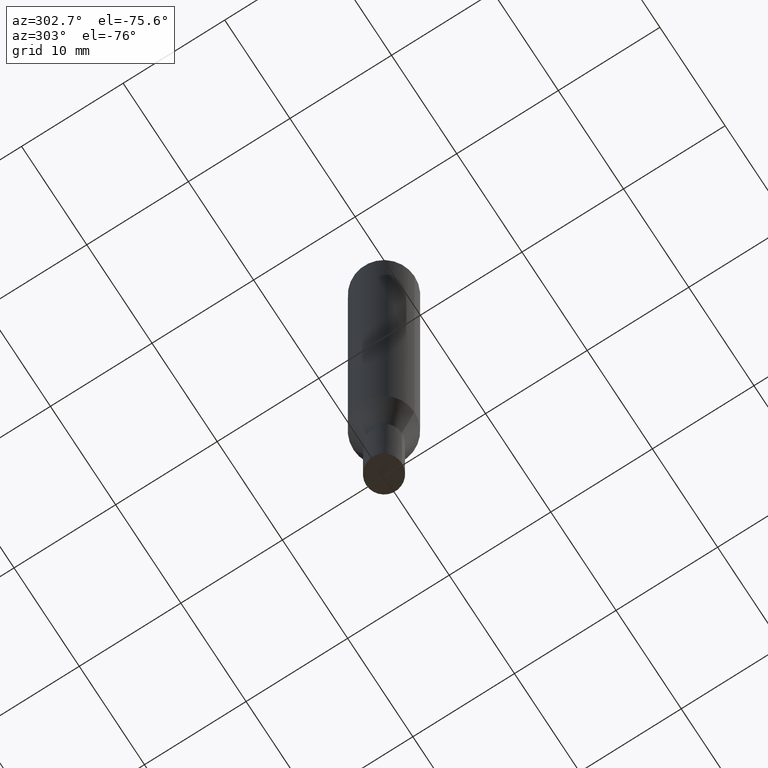
[diagram: clean part render]
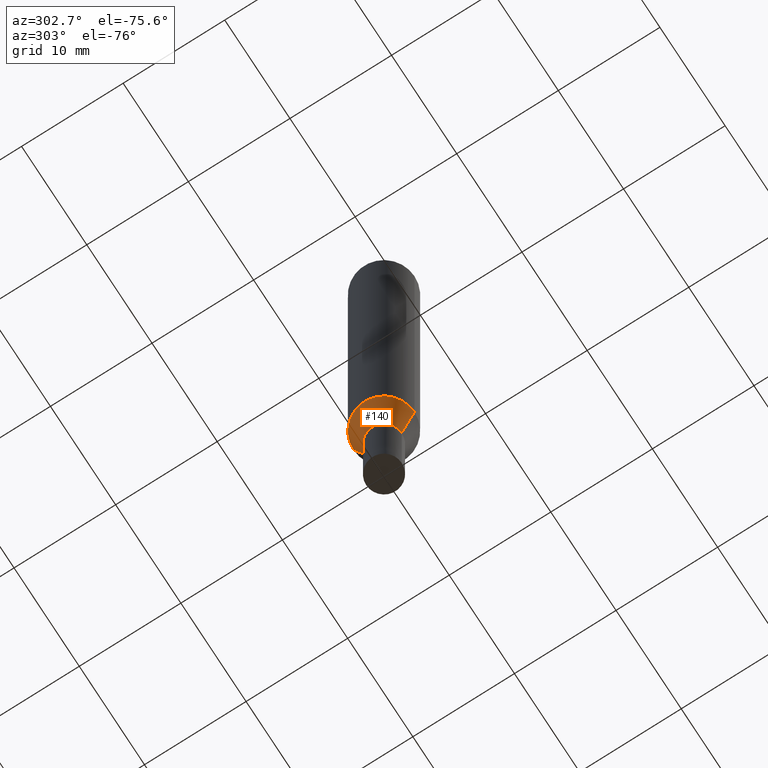
[diagram: same view with one face highlighted and labeled with its STEP entity id]
A machine part, auxiliary view. The second image highlights one B-rep face of the part: STEP entity #140.
In plain terms, the highlighted conical surface has half-angle 16.001 deg.
Its self-contained STEP definition (entity closure, byte-faithful):
#100=EDGE_CURVE('',#120,#124,#222,.T.);
#106=EDGE_CURVE('',#120,#118,#230,.T.);
#118=VERTEX_POINT('',#244);
#120=VERTEX_POINT('',#246);
#124=VERTEX_POINT('',#250);
#126=VERTEX_POINT('',#252);
#140=ADVANCED_FACE('',(#268),#269,.T.);
#142=EDGE_CURVE('',#126,#124,#271,.T.);
#176=EDGE_CURVE('',#118,#126,#308,.T.);
#222=CIRCLE('',#354,1.74995);
#230=LINE('',#363,#364);
#244=CARTESIAN_POINT('',(3.67375783114944E-016,-2.99995,-45.641));
#246=CARTESIAN_POINT('',(2.14299988887147E-016,-1.74995,-50.0));
#250=CARTESIAN_POINT('',(0.0,1.74995,-50.0));
#252=CARTESIAN_POINT('',(0.0,2.99995,-45.641));
#268=FACE_OUTER_BOUND('',#411,.T.);
#269=CONICAL_SURFACE('',#412,2.37495,0.279268973819818);
#271=LINE('',#415,#416);
#308=CIRCLE('',#461,2.99995);
#354=AXIS2_PLACEMENT_3D('',#494,#495,#496);
#363=CARTESIAN_POINT('',(2.90837886001046E-016,-2.37495,-47.8205));
#364=VECTOR('',#511,1.0);
#411=EDGE_LOOP('',(#555,#556,#557,#558));
#412=AXIS2_PLACEMENT_3D('',#559,#560,#561);
#415=CARTESIAN_POINT('',(-2.90837886001046E-016,2.37495,-47.8205));
#416=VECTOR('',#562,1.0);
#461=AXIS2_PLACEMENT_3D('',#606,#607,#608);
#494=CARTESIAN_POINT('',(0.0,0.0,-50.0));
#495=DIRECTION('',(0.0,0.0,-1.0));
#496=DIRECTION('',(0.0,1.0,0.0));
#511=DIRECTION('',(3.375664374138E-017,-0.275653018098551,0.961257204713265));
#555=ORIENTED_EDGE('',*,*,#142,.T.);
#556=ORIENTED_EDGE('',*,*,#100,.F.);
#557=ORIENTED_EDGE('',*,*,#106,.T.);
#558=ORIENTED_EDGE('',*,*,#176,.T.);
#559=CARTESIAN_POINT('',(0.0,0.0,-47.8205));
#560=DIRECTION('',(-0.0,-0.0,1.0));
#561=DIRECTION('',(0.0,1.0,0.0));
#562=DIRECTION('',(3.375664374138E-017,-0.275653018098551,-0.961257204713265));
#606=CARTESIAN_POINT('',(0.0,0.0,-45.641));
#607=DIRECTION('',(0.0,0.0,-1.0));
#608=DIRECTION('',(0.0,1.0,0.0));